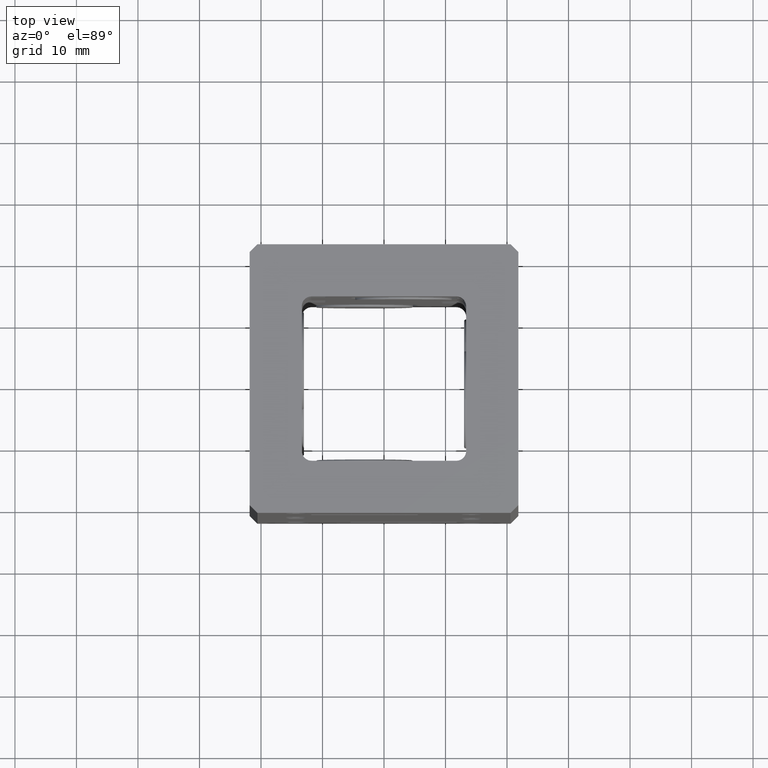
[diagram: clean part render]
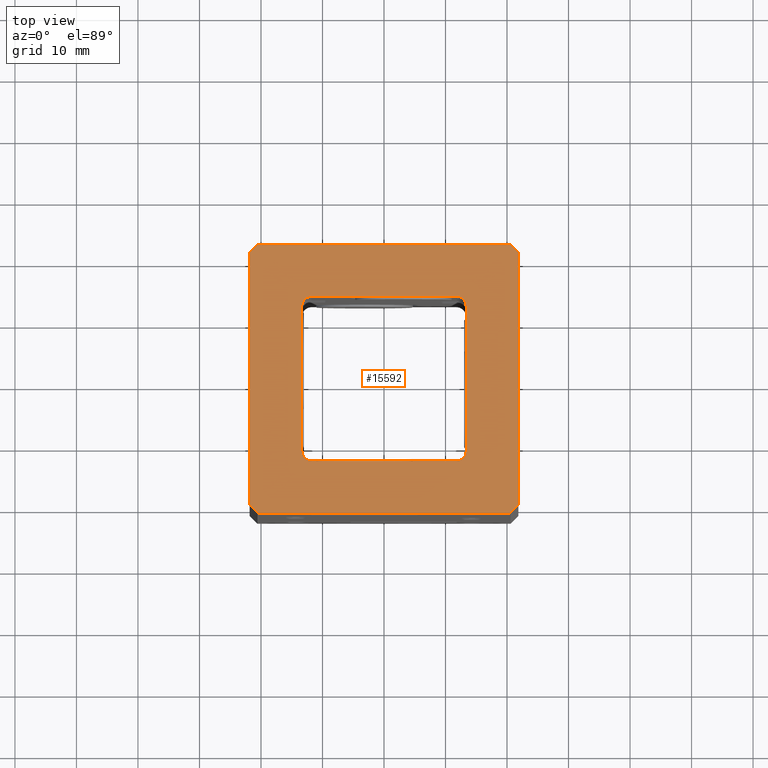
[diagram: same view with one face highlighted and labeled with its STEP entity id]
A machine part, top view. The second image highlights one B-rep face of the part: STEP entity #15592.
In plain terms, the highlighted planar face has unit normal (0, 0, -1).
Its self-contained STEP definition (entity closure, byte-faithful):
#135 = CARTESIAN_POINT ( 'NONE',  ( 0.4640000000000004121, -0.5260000000000003562, 2.000000000000000000 ) ) ;
#177 = EDGE_CURVE ( 'NONE', #5980, #16713, #1299, .T. ) ;
#190 = VERTEX_POINT ( 'NONE', #17677 ) ;
#334 = EDGE_CURVE ( 'NONE', #4909, #13117, #14224, .T. ) ;
#338 = CARTESIAN_POINT ( 'NONE',  ( -0.5259999999999996900, 0.4639999999999996350, 2.000000000000000000 ) ) ;
#354 = EDGE_CURVE ( 'NONE', #6426, #8871, #18853, .T. ) ;
#364 = CARTESIAN_POINT ( 'NONE',  ( -0.4639999999999996905, 0.4639999999999996350, 2.000000000000000000 ) ) ;
#499 = CARTESIAN_POINT ( 'NONE',  ( 0.8599999999999995426, 0.8099999999999991651, 2.000000000000000000 ) ) ;
#727 = ORIENTED_EDGE ( 'NONE', *, *, #177, .T. ) ;
#921 = ORIENTED_EDGE ( 'NONE', *, *, #12144, .T. ) ;
#1122 = DIRECTION ( 'NONE',  ( -0.7071067811865426878, 0.7071067811865523467, -0.000000000000000000 ) ) ;
#1299 = LINE ( 'NONE', #13078, #3143 ) ;
#1305 = ORIENTED_EDGE ( 'NONE', *, *, #12252, .T. ) ;
#1388 = CARTESIAN_POINT ( 'NONE',  ( -0.4639999999999996350, 0.5259999999999996900, 2.000000000000000000 ) ) ;
#1452 = LINE ( 'NONE', #7398, #8406 ) ;
#1474 = VECTOR ( 'NONE', #16489, 39.37007874015748854 ) ;
#1850 = DIRECTION ( 'NONE',  ( 0.000000000000000000, 0.000000000000000000, 1.000000000000000000 ) ) ;
#1938 = CARTESIAN_POINT ( 'NONE',  ( -0.8099999999999986100, 0.8599999999999994316, 2.000000000000000000 ) ) ;
#2010 = EDGE_CURVE ( 'NONE', #13071, #11377, #11011, .T. ) ;
#2065 = CARTESIAN_POINT ( 'NONE',  ( 0.8099999999999993872, 0.8599999999999994316, 2.000000000000000000 ) ) ;
#2111 = AXIS2_PLACEMENT_3D ( 'NONE', #13227, #7665, #8820 ) ;
#2158 = DIRECTION ( 'NONE',  ( -1.000000000000000000, -0.000000000000000000, -0.000000000000000000 ) ) ;
#2308 = ORIENTED_EDGE ( 'NONE', *, *, #2010, .T. ) ;
#2588 = EDGE_CURVE ( 'NONE', #3112, #9129, #15226, .T. ) ;
#2817 = VERTEX_POINT ( 'NONE', #3102 ) ;
#2832 = FACE_BOUND ( 'NONE', #14804, .T. ) ;
#2872 = DIRECTION ( 'NONE',  ( -1.000000000000000000, 0.000000000000000000, 0.000000000000000000 ) ) ;
#3102 = CARTESIAN_POINT ( 'NONE',  ( 0.8099999999999988320, -0.8600000000000005418, 2.000000000000000000 ) ) ;
#3112 = VERTEX_POINT ( 'NONE', #15862 ) ;
#3143 = VECTOR ( 'NONE', #18962, 39.37007874015748854 ) ;
#3204 = PLANE ( 'NONE',  #2111 ) ;
#3442 = DIRECTION ( 'NONE',  ( -1.000000000000000000, 0.000000000000000000, 0.000000000000000000 ) ) ;
#3493 = CIRCLE ( 'NONE', #6616, 0.06199999999999997874 ) ;
#3607 = CARTESIAN_POINT ( 'NONE',  ( -0.8599999999999988765, 0.8099999999999997202, 2.000000000000000000 ) ) ;
#3768 = CARTESIAN_POINT ( 'NONE',  ( 0.8599999999999995426, -0.8600000000000005418, 2.000000000000000000 ) ) ;
#4022 = VECTOR ( 'NONE', #8235, 39.37007874015748143 ) ;
#4156 = ORIENTED_EDGE ( 'NONE', *, *, #334, .F. ) ;
#4241 = VECTOR ( 'NONE', #15111, 39.37007874015748143 ) ;
#4329 = CARTESIAN_POINT ( 'NONE',  ( 0.4640000000000003566, 0.4639999999999996350, 2.000000000000000000 ) ) ;
#4332 = CARTESIAN_POINT ( 'NONE',  ( -0.8599999999999988765, -0.8099999999999997202, 2.000000000000000000 ) ) ;
#4844 = ORIENTED_EDGE ( 'NONE', *, *, #7504, .F. ) ;
#4909 = VERTEX_POINT ( 'NONE', #18451 ) ;
#5081 = CARTESIAN_POINT ( 'NONE',  ( -0.8599999999999988765, 0.8599999999999994316, 2.000000000000000000 ) ) ;
#5111 = CARTESIAN_POINT ( 'NONE',  ( 0.4640000000000004121, 0.5259999999999996900, 2.000000000000000000 ) ) ;
#5207 = CARTESIAN_POINT ( 'NONE',  ( -0.5259999999999996900, -0.4640000000000004121, 2.000000000000000000 ) ) ;
#5317 = LINE ( 'NONE', #5207, #8240 ) ;
#5401 = ORIENTED_EDGE ( 'NONE', *, *, #5958, .F. ) ;
#5958 = EDGE_CURVE ( 'NONE', #13117, #6426, #15401, .T. ) ;
#5980 = VERTEX_POINT ( 'NONE', #1938 ) ;
#6412 = ORIENTED_EDGE ( 'NONE', *, *, #17687, .T. ) ;
#6426 = VERTEX_POINT ( 'NONE', #1388 ) ;
#6616 = AXIS2_PLACEMENT_3D ( 'NONE', #18068, #7998, #16615 ) ;
#6834 = EDGE_CURVE ( 'NONE', #190, #4909, #15057, .T. ) ;
#7325 = LINE ( 'NONE', #14785, #16652 ) ;
#7354 = ORIENTED_EDGE ( 'NONE', *, *, #10049, .F. ) ;
#7360 = VECTOR ( 'NONE', #12875, 39.37007874015748143 ) ;
#7398 = CARTESIAN_POINT ( 'NONE',  ( -0.8599999999999988765, -0.8600000000000005418, 2.000000000000000000 ) ) ;
#7504 = EDGE_CURVE ( 'NONE', #8871, #8126, #5317, .T. ) ;
#7514 = ORIENTED_EDGE ( 'NONE', *, *, #13699, .T. ) ;
#7665 = DIRECTION ( 'NONE',  ( 0.000000000000000000, 0.000000000000000000, -1.000000000000000000 ) ) ;
#7998 = DIRECTION ( 'NONE',  ( 0.000000000000000000, 0.000000000000000000, 1.000000000000000000 ) ) ;
#8126 = VERTEX_POINT ( 'NONE', #10846 ) ;
#8165 = LINE ( 'NONE', #5081, #17230 ) ;
#8235 = DIRECTION ( 'NONE',  ( -1.000000000000000000, -0.000000000000000000, -0.000000000000000000 ) ) ;
#8240 = VECTOR ( 'NONE', #11076, 39.37007874015748143 ) ;
#8256 = ORIENTED_EDGE ( 'NONE', *, *, #11883, .F. ) ;
#8406 = VECTOR ( 'NONE', #13242, 39.37007874015748143 ) ;
#8820 = DIRECTION ( 'NONE',  ( -1.000000000000000000, 0.000000000000000000, -0.000000000000000000 ) ) ;
#8871 = VERTEX_POINT ( 'NONE', #338 ) ;
#8914 = FACE_OUTER_BOUND ( 'NONE', #18087, .T. ) ;
#9129 = VERTEX_POINT ( 'NONE', #135 ) ;
#9703 = ORIENTED_EDGE ( 'NONE', *, *, #6834, .F. ) ;
#9890 = CARTESIAN_POINT ( 'NONE',  ( -0.8099999999999986100, -0.8600000000000005418, 2.000000000000000000 ) ) ;
#9942 = AXIS2_PLACEMENT_3D ( 'NONE', #4329, #14891, #2872 ) ;
#10049 = EDGE_CURVE ( 'NONE', #9129, #190, #3493, .T. ) ;
#10175 = CIRCLE ( 'NONE', #18142, 0.06199999999999997874 ) ;
#10204 = DIRECTION ( 'NONE',  ( 0.7071067811865503483, 0.7071067811865445751, -0.000000000000000000 ) ) ;
#10666 = LINE ( 'NONE', #13174, #1474 ) ;
#10751 = CARTESIAN_POINT ( 'NONE',  ( -0.4639999999999996350, -0.5260000000000004672, 2.000000000000000000 ) ) ;
#10846 = CARTESIAN_POINT ( 'NONE',  ( -0.5259999999999996900, -0.4640000000000004121, 2.000000000000000000 ) ) ;
#10858 = AXIS2_PLACEMENT_3D ( 'NONE', #364, #15353, #3442 ) ;
#11011 = LINE ( 'NONE', #3768, #4241 ) ;
#11026 = CARTESIAN_POINT ( 'NONE',  ( 0.5260000000000003562, -0.4640000000000004121, 2.000000000000000000 ) ) ;
#11076 = DIRECTION ( 'NONE',  ( -0.000000000000000000, -1.000000000000000000, -0.000000000000000000 ) ) ;
#11349 = VECTOR ( 'NONE', #16871, 39.37007874015748143 ) ;
#11377 = VERTEX_POINT ( 'NONE', #499 ) ;
#11883 = EDGE_CURVE ( 'NONE', #8126, #3112, #10175, .T. ) ;
#11963 = VERTEX_POINT ( 'NONE', #9890 ) ;
#12144 = EDGE_CURVE ( 'NONE', #12147, #11963, #10666, .T. ) ;
#12147 = VERTEX_POINT ( 'NONE', #4332 ) ;
#12252 = EDGE_CURVE ( 'NONE', #14196, #5980, #8165, .T. ) ;
#12340 = ORIENTED_EDGE ( 'NONE', *, *, #14126, .T. ) ;
#12654 = DIRECTION ( 'NONE',  ( 0.000000000000000000, 1.000000000000000000, 0.000000000000000000 ) ) ;
#12875 = DIRECTION ( 'NONE',  ( 1.000000000000000000, 0.000000000000000000, 0.000000000000000000 ) ) ;
#13002 = LINE ( 'NONE', #18973, #16014 ) ;
#13071 = VERTEX_POINT ( 'NONE', #15259 ) ;
#13078 = CARTESIAN_POINT ( 'NONE',  ( -0.8599999999999988765, 0.8099999999999997202, 2.000000000000000000 ) ) ;
#13117 = VERTEX_POINT ( 'NONE', #5111 ) ;
#13174 = CARTESIAN_POINT ( 'NONE',  ( -0.8099999999999986100, -0.8600000000000005418, 2.000000000000000000 ) ) ;
#13227 = CARTESIAN_POINT ( 'NONE',  ( 0.000000000000000000, 0.000000000000000000, 2.000000000000000000 ) ) ;
#13242 = DIRECTION ( 'NONE',  ( -0.000000000000000000, -1.000000000000000000, -0.000000000000000000 ) ) ;
#13530 = DIRECTION ( 'NONE',  ( -1.000000000000000000, 0.000000000000000000, 0.000000000000000000 ) ) ;
#13699 = EDGE_CURVE ( 'NONE', #11377, #14196, #13002, .T. ) ;
#14126 = EDGE_CURVE ( 'NONE', #2817, #13071, #7325, .T. ) ;
#14196 = VERTEX_POINT ( 'NONE', #2065 ) ;
#14224 = CIRCLE ( 'NONE', #9942, 0.06199999999999997874 ) ;
#14377 = ORIENTED_EDGE ( 'NONE', *, *, #2588, .F. ) ;
#14785 = CARTESIAN_POINT ( 'NONE',  ( 0.8599999999999995426, -0.8100000000000008304, 2.000000000000000000 ) ) ;
#14804 = EDGE_LOOP ( 'NONE', ( #8256, #4844, #18267, #5401, #4156, #9703, #7354, #14377 ) ) ;
#14891 = DIRECTION ( 'NONE',  ( 0.000000000000000000, 0.000000000000000000, 1.000000000000000000 ) ) ;
#15057 = LINE ( 'NONE', #11026, #17409 ) ;
#15111 = DIRECTION ( 'NONE',  ( 0.000000000000000000, 1.000000000000000000, 0.000000000000000000 ) ) ;
#15120 = CARTESIAN_POINT ( 'NONE',  ( -0.4639999999999996350, 0.5259999999999996900, 2.000000000000000000 ) ) ;
#15226 = LINE ( 'NONE', #10751, #11349 ) ;
#15228 = EDGE_CURVE ( 'NONE', #11963, #2817, #17384, .T. ) ;
#15259 = CARTESIAN_POINT ( 'NONE',  ( 0.8599999999999995426, -0.8100000000000008304, 2.000000000000000000 ) ) ;
#15353 = DIRECTION ( 'NONE',  ( 0.000000000000000000, 0.000000000000000000, 1.000000000000000000 ) ) ;
#15401 = LINE ( 'NONE', #15120, #4022 ) ;
#15592 = ADVANCED_FACE ( 'NONE', ( #8914, #2832 ), #3204, .F. ) ;
#15862 = CARTESIAN_POINT ( 'NONE',  ( -0.4639999999999996350, -0.5260000000000004672, 2.000000000000000000 ) ) ;
#16014 = VECTOR ( 'NONE', #1122, 39.37007874015748143 ) ;
#16120 = CARTESIAN_POINT ( 'NONE',  ( -0.4639999999999996905, -0.4640000000000004121, 2.000000000000000000 ) ) ;
#16489 = DIRECTION ( 'NONE',  ( 0.7071067811865435759, -0.7071067811865513475, -0.000000000000000000 ) ) ;
#16615 = DIRECTION ( 'NONE',  ( 1.000000000000000000, 0.000000000000000000, 0.000000000000000000 ) ) ;
#16652 = VECTOR ( 'NONE', #10204, 39.37007874015748854 ) ;
#16713 = VERTEX_POINT ( 'NONE', #3607 ) ;
#16837 = ORIENTED_EDGE ( 'NONE', *, *, #15228, .T. ) ;
#16871 = DIRECTION ( 'NONE',  ( 1.000000000000000000, 1.471900858655314217E-16, 0.000000000000000000 ) ) ;
#17230 = VECTOR ( 'NONE', #2158, 39.37007874015748143 ) ;
#17287 = CARTESIAN_POINT ( 'NONE',  ( -0.8599999999999988765, -0.8600000000000005418, 2.000000000000000000 ) ) ;
#17384 = LINE ( 'NONE', #17287, #7360 ) ;
#17409 = VECTOR ( 'NONE', #12654, 39.37007874015748143 ) ;
#17677 = CARTESIAN_POINT ( 'NONE',  ( 0.5260000000000003562, -0.4640000000000004121, 2.000000000000000000 ) ) ;
#17687 = EDGE_CURVE ( 'NONE', #16713, #12147, #1452, .T. ) ;
#18068 = CARTESIAN_POINT ( 'NONE',  ( 0.4640000000000003566, -0.4640000000000004121, 2.000000000000000000 ) ) ;
#18087 = EDGE_LOOP ( 'NONE', ( #1305, #727, #6412, #921, #16837, #12340, #2308, #7514 ) ) ;
#18142 = AXIS2_PLACEMENT_3D ( 'NONE', #16120, #1850, #13530 ) ;
#18267 = ORIENTED_EDGE ( 'NONE', *, *, #354, .F. ) ;
#18451 = CARTESIAN_POINT ( 'NONE',  ( 0.5260000000000003562, 0.4639999999999996350, 2.000000000000000000 ) ) ;
#18853 = CIRCLE ( 'NONE', #10858, 0.06199999999999997874 ) ;
#18962 = DIRECTION ( 'NONE',  ( -0.7071067811865513475, -0.7071067811865435759, -0.000000000000000000 ) ) ;
#18973 = CARTESIAN_POINT ( 'NONE',  ( 0.8099999999999999423, 0.8599999999999994316, 2.000000000000000000 ) ) ;